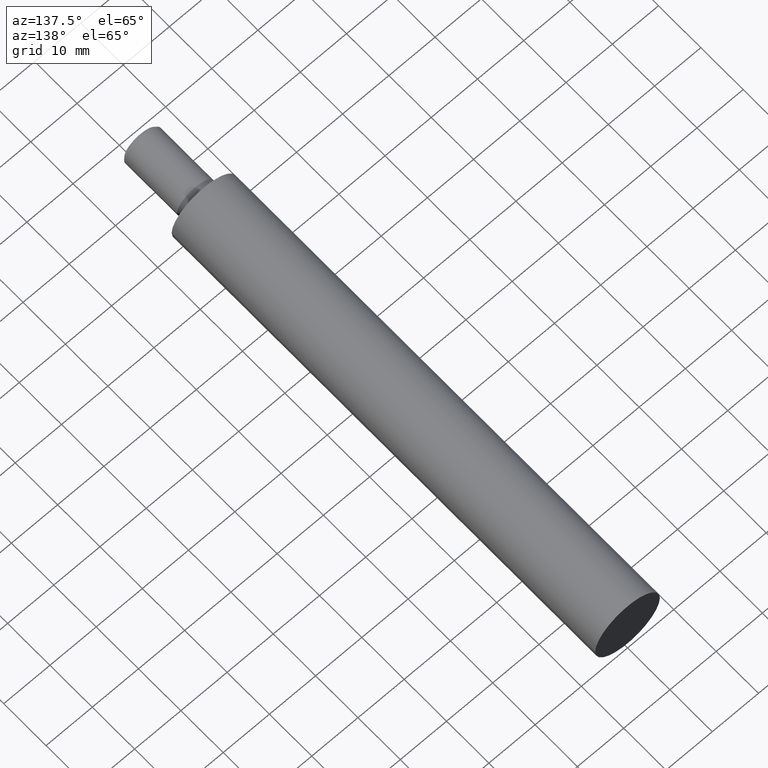
[diagram: clean part render]
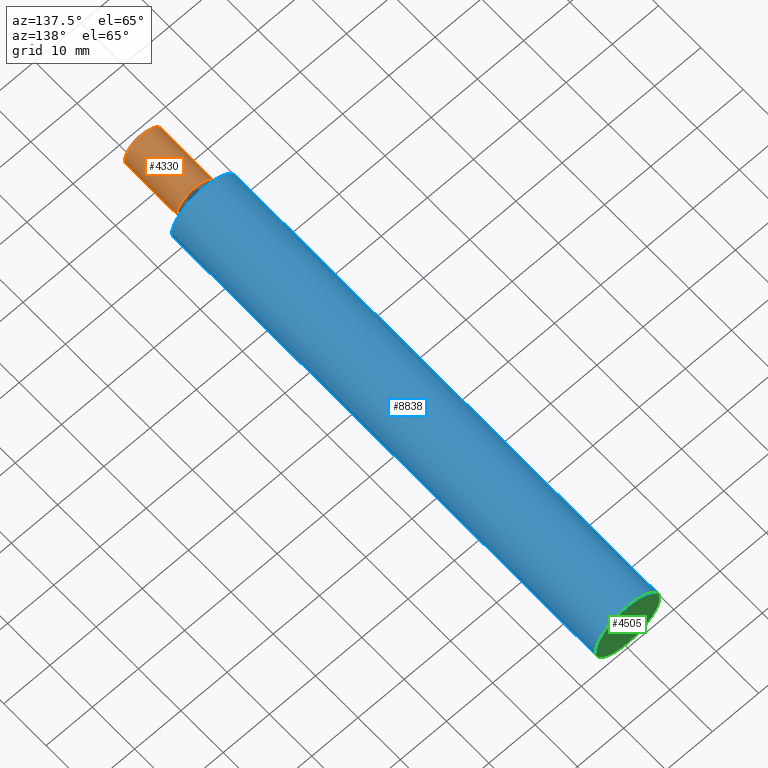
[diagram: same view with three faces highlighted in distinct colors, each labeled with its STEP entity id]
A machine part, auxiliary view with three faces highlighted in distinct colors.
Their STEP definitions:

[orange] entity #4330 — the highlighted cylindrical surface (bore or boss wall) has radius 4 mm, axis along (0, -1, -0).
#347 = VERTEX_POINT ( 'NONE', #4137 ) ;
#645 = CIRCLE ( 'NONE', #8898, 4.000000000000000888 ) ;
#777 = EDGE_LOOP ( 'NONE', ( #1792 ) ) ;
#972 = CARTESIAN_POINT ( 'NONE',  ( 1.925929944387235853E-31, -15.00000000000000000, 0.000000000000000000 ) ) ;
#1145 = ORIENTED_EDGE ( 'NONE', *, *, #11140, .T. ) ;
#1534 = EDGE_LOOP ( 'NONE', ( #1145 ) ) ;
#1792 = ORIENTED_EDGE ( 'NONE', *, *, #4202, .T. ) ;
#2104 = CARTESIAN_POINT ( 'NONE',  ( 4.000000000000000888, -14.49999999999998934, 0.000000000000000000 ) ) ;
#2821 = DIRECTION ( 'NONE',  ( 1.674721690771509348E-33, -1.000000000000000000, -0.000000000000000000 ) ) ;
#2933 = FACE_OUTER_BOUND ( 'NONE', #1534, .T. ) ;
#2956 = AXIS2_PLACEMENT_3D ( 'NONE', #972, #2821, #10606 ) ;
#4137 = CARTESIAN_POINT ( 'NONE',  ( 4.000000000000000000, -2.000000000000000000, 0.000000000000000000 ) ) ;
#4202 = EDGE_CURVE ( 'NONE', #10728, #10728, #645, .T. ) ;
#4330 = ADVANCED_FACE ( 'NONE', ( #5545, #2933 ), #11615, .T. ) ;
#5545 = FACE_OUTER_BOUND ( 'NONE', #777, .T. ) ;
#6141 = DIRECTION ( 'NONE',  ( 1.000000000000000000, 0.000000000000000000, 0.000000000000000000 ) ) ;
#6259 = AXIS2_PLACEMENT_3D ( 'NONE', #7115, #10950, #6141 ) ;
#6441 = DIRECTION ( 'NONE',  ( -1.674721690771506269E-33, 1.000000000000000000, 0.000000000000000000 ) ) ;
#7115 = CARTESIAN_POINT ( 'NONE',  ( 1.708216124586939521E-31, -2.000000000000000000, 0.000000000000000000 ) ) ;
#8898 = AXIS2_PLACEMENT_3D ( 'NONE', #10177, #6441, #12129 ) ;
#10177 = CARTESIAN_POINT ( 'NONE',  ( 1.917556335933378125E-31, -14.49999999999998934, 0.000000000000000000 ) ) ;
#10227 = CIRCLE ( 'NONE', #6259, 4.000000000000000000 ) ;
#10606 = DIRECTION ( 'NONE',  ( 1.000000000000000000, 0.000000000000000000, 0.000000000000000000 ) ) ;
#10728 = VERTEX_POINT ( 'NONE', #2104 ) ;
#10950 = DIRECTION ( 'NONE',  ( 1.674721690771509348E-33, -1.000000000000000000, -0.000000000000000000 ) ) ;
#11140 = EDGE_CURVE ( 'NONE', #347, #347, #10227, .T. ) ;
#11615 = CYLINDRICAL_SURFACE ( 'NONE', #2956, 4.000000000000000888 ) ;
#12129 = DIRECTION ( 'NONE',  ( 1.000000000000000000, 0.000000000000000000, 0.000000000000000000 ) ) ;

[blue] entity #8838 — the highlighted cylindrical surface (bore or boss wall) has radius 7 mm, axis along (0, -1, -0).
#63 = CARTESIAN_POINT ( 'NONE',  ( 1.925929944387235853E-31, -15.00000000000000000, 0.000000000000000000 ) ) ;
#89 = CARTESIAN_POINT ( 'NONE',  ( 7.000000000000005329, 1.172305183540057433E-32, 0.000000000000000000 ) ) ;
#1241 = CIRCLE ( 'NONE', #2899, 7.000000000000005329 ) ;
#1758 = EDGE_CURVE ( 'NONE', #6168, #6168, #9647, .T. ) ;
#2187 = AXIS2_PLACEMENT_3D ( 'NONE', #3100, #11968, #5044 ) ;
#2344 = AXIS2_PLACEMENT_3D ( 'NONE', #63, #4109, #8984 ) ;
#2899 = AXIS2_PLACEMENT_3D ( 'NONE', #3957, #12561, #7811 ) ;
#3100 = CARTESIAN_POINT ( 'NONE',  ( 0.000000000000000000, 100.0000000000000000, 0.000000000000000000 ) ) ;
#3957 = CARTESIAN_POINT ( 'NONE',  ( 1.674721690771509485E-31, 0.000000000000000000, 0.000000000000000000 ) ) ;
#4109 = DIRECTION ( 'NONE',  ( 1.674721690771509348E-33, -1.000000000000000000, -0.000000000000000000 ) ) ;
#4136 = CYLINDRICAL_SURFACE ( 'NONE', #2344, 6.999999999999999112 ) ;
#5044 = DIRECTION ( 'NONE',  ( 1.000000000000000000, 0.000000000000000000, 0.000000000000000000 ) ) ;
#5344 = FACE_OUTER_BOUND ( 'NONE', #6159, .T. ) ;
#6133 = ORIENTED_EDGE ( 'NONE', *, *, #1758, .T. ) ;
#6159 = EDGE_LOOP ( 'NONE', ( #6133 ) ) ;
#6168 = VERTEX_POINT ( 'NONE', #7994 ) ;
#7228 = ORIENTED_EDGE ( 'NONE', *, *, #10119, .F. ) ;
#7811 = DIRECTION ( 'NONE',  ( 1.000000000000000000, 1.674721690771509348E-33, 0.000000000000000000 ) ) ;
#7994 = CARTESIAN_POINT ( 'NONE',  ( 6.999999999999993783, 100.0000000000000000, 0.000000000000000000 ) ) ;
#8452 = VERTEX_POINT ( 'NONE', #89 ) ;
#8838 = ADVANCED_FACE ( 'NONE', ( #5344, #10813 ), #4136, .T. ) ;
#8984 = DIRECTION ( 'NONE',  ( 1.000000000000000000, 0.000000000000000000, 0.000000000000000000 ) ) ;
#9647 = CIRCLE ( 'NONE', #2187, 6.999999999999993783 ) ;
#10119 = EDGE_CURVE ( 'NONE', #8452, #8452, #1241, .T. ) ;
#10813 = FACE_OUTER_BOUND ( 'NONE', #10914, .T. ) ;
#10914 = EDGE_LOOP ( 'NONE', ( #7228 ) ) ;
#11968 = DIRECTION ( 'NONE',  ( 1.674721690771509348E-33, -1.000000000000000000, -0.000000000000000000 ) ) ;
#12561 = DIRECTION ( 'NONE',  ( 1.674721690771509348E-33, -1.000000000000000000, -0.000000000000000000 ) ) ;

[green] entity #4505 — the highlighted planar face has unit normal (-0, 1, 0).
#310 = PLANE ( 'NONE',  #655 ) ;
#655 = AXIS2_PLACEMENT_3D ( 'NONE', #12065, #7229, #11159 ) ;
#822 = EDGE_LOOP ( 'NONE', ( #4587 ) ) ;
#1758 = EDGE_CURVE ( 'NONE', #6168, #6168, #9647, .T. ) ;
#2187 = AXIS2_PLACEMENT_3D ( 'NONE', #3100, #11968, #5044 ) ;
#3100 = CARTESIAN_POINT ( 'NONE',  ( 0.000000000000000000, 100.0000000000000000, 0.000000000000000000 ) ) ;
#4505 = ADVANCED_FACE ( 'NONE', ( #6283 ), #310, .T. ) ;
#4587 = ORIENTED_EDGE ( 'NONE', *, *, #1758, .F. ) ;
#5044 = DIRECTION ( 'NONE',  ( 1.000000000000000000, 0.000000000000000000, 0.000000000000000000 ) ) ;
#6168 = VERTEX_POINT ( 'NONE', #7994 ) ;
#6283 = FACE_OUTER_BOUND ( 'NONE', #822, .T. ) ;
#7229 = DIRECTION ( 'NONE',  ( -1.674721690771509348E-33, 1.000000000000000000, 0.000000000000000000 ) ) ;
#7994 = CARTESIAN_POINT ( 'NONE',  ( 6.999999999999993783, 100.0000000000000000, 0.000000000000000000 ) ) ;
#9647 = CIRCLE ( 'NONE', #2187, 6.999999999999993783 ) ;
#11159 = DIRECTION ( 'NONE',  ( -1.000000000000000000, -1.674721690771509348E-33, 0.000000000000000000 ) ) ;
#11968 = DIRECTION ( 'NONE',  ( 1.674721690771509348E-33, -1.000000000000000000, -0.000000000000000000 ) ) ;
#12065 = CARTESIAN_POINT ( 'NONE',  ( 9.816424595392032678E-66, 100.0000000000000000, 0.000000000000000000 ) ) ;